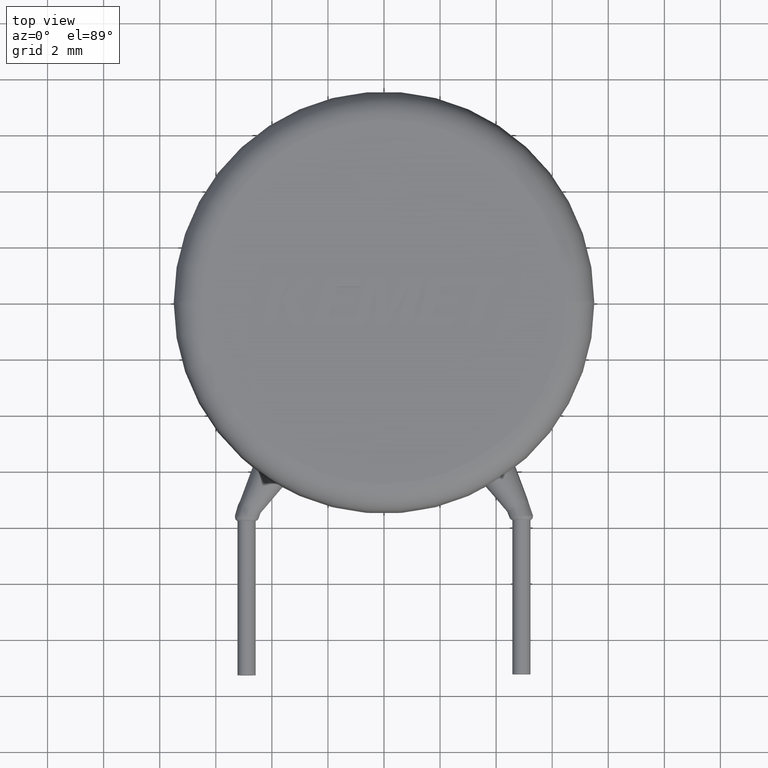
[diagram: clean part render]
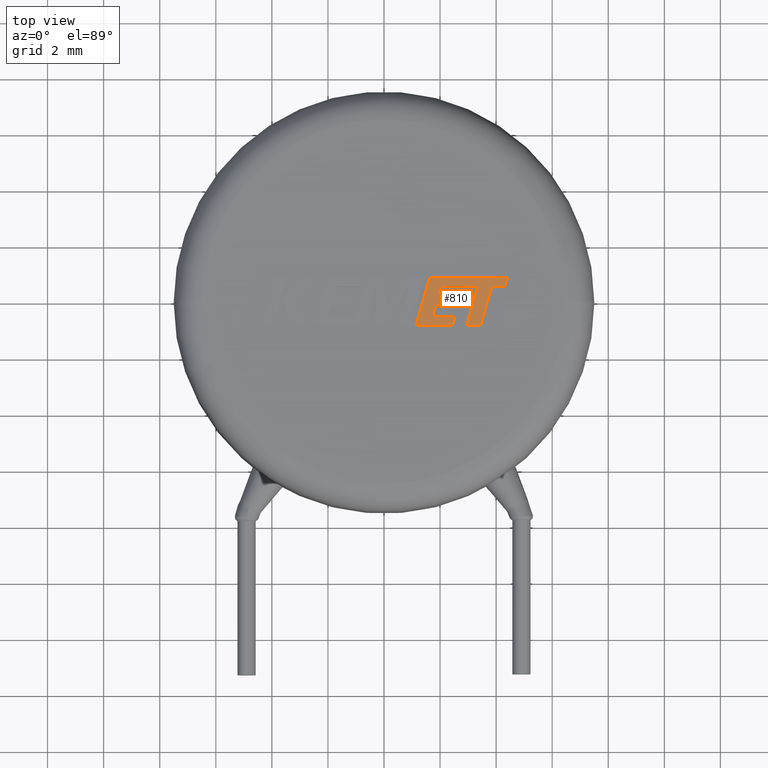
[diagram: same view with one face highlighted and labeled with its STEP entity id]
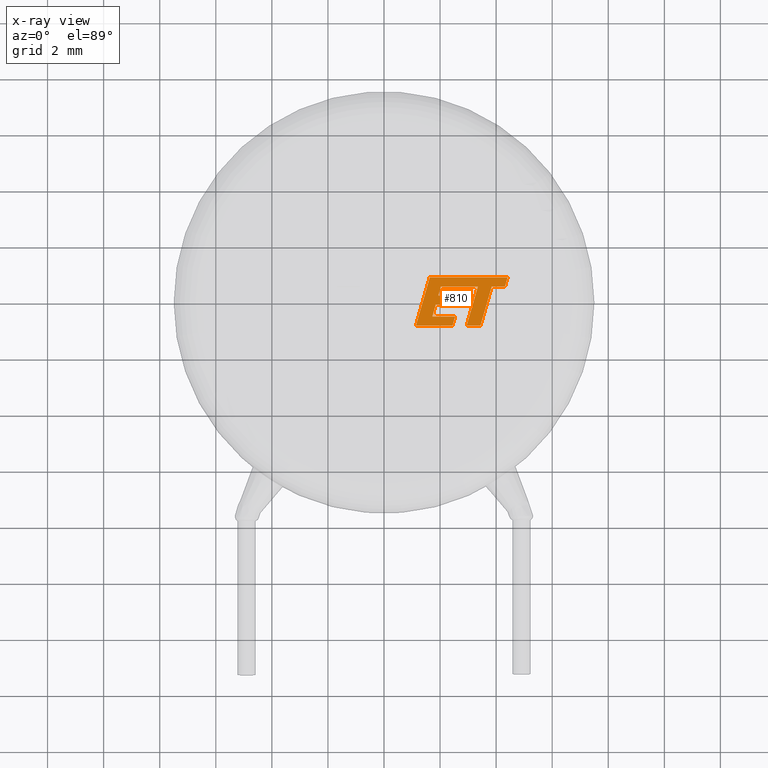
[diagram: x-ray of the same camera — body ghosted, the highlighted face saturated]
A machine part, top view. The second image highlights one B-rep face of the part: STEP entity #810.
The next image is the same camera in x-ray: the body ghosted, the highlighted face saturated — about 0% of this face is hidden behind the body in this view.
In plain terms, the highlighted planar face has unit normal (0, 0, 1).
Its self-contained STEP definition (entity closure, byte-faithful):
#30 = LINE ( 'NONE', #820, #2118 ) ;
#32 = LINE ( 'NONE', #1447, #2534 ) ;
#51 = ORIENTED_EDGE ( 'NONE', *, *, #3257, .T. ) ;
#53 = DIRECTION ( 'NONE',  ( 1.000000000000000000, 0.0000000000000000000, 0.0000000000000000000 ) ) ;
#127 = EDGE_LOOP ( 'NONE', ( #876, #3526, #4137, #2435, #4086, #927, #51, #1449, #3589, #2759, #3793, #1564, #815, #193, #1712, #928, #881 ) ) ;
#193 = ORIENTED_EDGE ( 'NONE', *, *, #3365, .T. ) ;
#215 = VECTOR ( 'NONE', #3650, 1000.000000000000100 ) ;
#300 = LINE ( 'NONE', #1102, #2623 ) ;
#354 = DIRECTION ( 'NONE',  ( 0.9999960426590096500, -0.002813301676023193800, 0.0000000000000000000 ) ) ;
#376 = LINE ( 'NONE', #3717, #2485 ) ;
#416 = DIRECTION ( 'NONE',  ( 0.9999999968487352000, -7.938847109813065900E-005, 0.0000000000000000000 ) ) ;
#457 = DIRECTION ( 'NONE',  ( 1.000000000000000000, 0.0000000000000000000, 0.0000000000000000000 ) ) ;
#556 = DIRECTION ( 'NONE',  ( -1.000000000000000000, 0.0000000000000000000, 0.0000000000000000000 ) ) ;
#565 = VERTEX_POINT ( 'NONE', #1271 ) ;
#576 = VERTEX_POINT ( 'NONE', #3459 ) ;
#586 = CARTESIAN_POINT ( 'NONE',  ( 3.348381559647293200, 0.5265598208040931400, 5.004999999999999900 ) ) ;
#592 = CARTESIAN_POINT ( 'NONE',  ( 1.937553791091198400, 0.2097993090211800500, 5.004999999999999900 ) ) ;
#602 = EDGE_CURVE ( 'NONE', #872, #4114, #2046, .T. ) ;
#671 = CARTESIAN_POINT ( 'NONE',  ( 2.031084921090601900, 0.5312311227469012100, 5.004999999999999900 ) ) ;
#681 = VERTEX_POINT ( 'NONE', #3808 ) ;
#686 = CARTESIAN_POINT ( 'NONE',  ( 2.443977569016539500, -0.8679000000000534100, 5.004999999999999900 ) ) ;
#691 = FACE_OUTER_BOUND ( 'NONE', #127, .T. ) ;
#736 = CARTESIAN_POINT ( 'NONE',  ( 2.823009846060751600, 0.5290031902115094300, 5.004999999999999900 ) ) ;
#771 = VERTEX_POINT ( 'NONE', #2057 ) ;
#791 = LINE ( 'NONE', #1078, #2494 ) ;
#810 = ADVANCED_FACE ( 'NONE', ( #691 ), #2141, .T. ) ;
#815 = ORIENTED_EDGE ( 'NONE', *, *, #2300, .T. ) ;
#820 = CARTESIAN_POINT ( 'NONE',  ( 2.947458794537710000, -0.8679000000000534100, 5.004999999999999900 ) ) ;
#871 = VECTOR ( 'NONE', #2799, 1000.000000000000000 ) ;
#872 = VERTEX_POINT ( 'NONE', #1483 ) ;
#876 = ORIENTED_EDGE ( 'NONE', *, *, #2509, .T. ) ;
#881 = ORIENTED_EDGE ( 'NONE', *, *, #2350, .T. ) ;
#905 = CARTESIAN_POINT ( 'NONE',  ( 1.723808886253191700, -0.5390592596859760100, 5.004999999999999900 ) ) ;
#921 = LINE ( 'NONE', #905, #2154 ) ;
#927 = ORIENTED_EDGE ( 'NONE', *, *, #3858, .T. ) ;
#928 = ORIENTED_EDGE ( 'NONE', *, *, #602, .T. ) ;
#943 = LINE ( 'NONE', #3233, #3447 ) ;
#1031 = VERTEX_POINT ( 'NONE', #736 ) ;
#1078 = CARTESIAN_POINT ( 'NONE',  ( 1.138325030688700700, -0.8679000000000534100, 5.004999999999999900 ) ) ;
#1102 = CARTESIAN_POINT ( 'NONE',  ( 2.823009846060751600, 0.5290031902115094300, 5.004999999999999900 ) ) ;
#1109 = EDGE_CURVE ( 'NONE', #1897, #771, #2224, .T. ) ;
#1179 = CARTESIAN_POINT ( 'NONE',  ( 1.937553791091198400, 0.2097993090211800500, 5.004999999999999900 ) ) ;
#1269 = DIRECTION ( 'NONE',  ( 0.2746918797667246600, 0.9615323037684294600, 0.0000000000000000000 ) ) ;
#1271 = CARTESIAN_POINT ( 'NONE',  ( 2.537288007585364100, -0.5390592596859760100, 5.004999999999999900 ) ) ;
#1393 = EDGE_CURVE ( 'NONE', #3679, #3089, #3599, .T. ) ;
#1447 = CARTESIAN_POINT ( 'NONE',  ( 2.537288007585364100, -0.5390592596859760100, 5.004999999999999900 ) ) ;
#1449 = ORIENTED_EDGE ( 'NONE', *, *, #1393, .T. ) ;
#1483 = CARTESIAN_POINT ( 'NONE',  ( 2.679171579060150700, 0.2097993090211800500, 5.004999999999999900 ) ) ;
#1522 = CARTESIAN_POINT ( 'NONE',  ( 1.723808886253191700, -0.5390592596859760100, 5.004999999999999900 ) ) ;
#1564 = ORIENTED_EDGE ( 'NONE', *, *, #3564, .T. ) ;
#1712 = ORIENTED_EDGE ( 'NONE', *, *, #3401, .T. ) ;
#1746 = EDGE_CURVE ( 'NONE', #771, #3137, #30, .T. ) ;
#1770 = CARTESIAN_POINT ( 'NONE',  ( 3.439737302690416300, -0.8679000000000529600, 5.004999999999999900 ) ) ;
#1781 = LINE ( 'NONE', #2471, #2127 ) ;
#1824 = DIRECTION ( 'NONE',  ( 0.2762033010287896500, 0.9610992334305545900, 0.0000000000000000000 ) ) ;
#1833 = VECTOR ( 'NONE', #1269, 1000.000000000000100 ) ;
#1864 = CARTESIAN_POINT ( 'NONE',  ( 4.313690376552037800, 0.5265222584692270700, 5.004999999999999900 ) ) ;
#1897 = VERTEX_POINT ( 'NONE', #586 ) ;
#1916 = EDGE_CURVE ( 'NONE', #2011, #565, #3484, .T. ) ;
#2011 = VERTEX_POINT ( 'NONE', #2349 ) ;
#2020 = CARTESIAN_POINT ( 'NONE',  ( 1.846408230362533500, -0.1096147544844904700, 5.004999999999999900 ) ) ;
#2046 = LINE ( 'NONE', #2749, #4100 ) ;
#2057 = CARTESIAN_POINT ( 'NONE',  ( 2.947458794537710000, -0.8679000000000534100, 5.004999999999999900 ) ) ;
#2078 = DIRECTION ( 'NONE',  ( 1.000000000000000000, 8.897046291125922000E-017, 0.0000000000000000000 ) ) ;
#2118 = VECTOR ( 'NONE', #2357, 1000.000000000000000 ) ;
#2127 = VECTOR ( 'NONE', #457, 1000.000000000000000 ) ;
#2141 = PLANE ( 'NONE',  #3951 ) ;
#2154 = VECTOR ( 'NONE', #3514, 999.9999999999998900 ) ;
#2162 = VERTEX_POINT ( 'NONE', #2800 ) ;
#2219 = VECTOR ( 'NONE', #2431, 1000.000000000000100 ) ;
#2224 = LINE ( 'NONE', #3312, #3744 ) ;
#2272 = DIRECTION ( 'NONE',  ( 0.2729786930695222700, 0.9620200793798721100, 0.0000000000000000000 ) ) ;
#2300 = EDGE_CURVE ( 'NONE', #4099, #2508, #921, .T. ) ;
#2307 = VECTOR ( 'NONE', #354, 999.9999999999998900 ) ;
#2349 = CARTESIAN_POINT ( 'NONE',  ( 2.443977569016539500, -0.8679000000000534100, 5.004999999999999900 ) ) ;
#2350 = EDGE_CURVE ( 'NONE', #4114, #576, #3323, .T. ) ;
#2357 = DIRECTION ( 'NONE',  ( 1.000000000000000000, 4.719463019915311100E-016, 0.0000000000000000000 ) ) ;
#2362 = DIRECTION ( 'NONE',  ( -0.2763173343569908500, -0.9610664548998924000, 0.0000000000000000000 ) ) ;
#2431 = DIRECTION ( 'NONE',  ( -0.2764273280489765200, -0.9610348236706636200, 0.0000000000000000000 ) ) ;
#2435 = ORIENTED_EDGE ( 'NONE', *, *, #1746, .T. ) ;
#2471 = CARTESIAN_POINT ( 'NONE',  ( 1.846408230362533500, -0.1096147544844904700, 5.004999999999999900 ) ) ;
#2485 = VECTOR ( 'NONE', #416, 1000.000000000000200 ) ;
#2494 = VECTOR ( 'NONE', #2078, 1000.000000000000000 ) ;
#2508 = VERTEX_POINT ( 'NONE', #2020 ) ;
#2509 = EDGE_CURVE ( 'NONE', #576, #1031, #2972, .T. ) ;
#2534 = VECTOR ( 'NONE', #3134, 1000.000000000000000 ) ;
#2535 = CARTESIAN_POINT ( 'NONE',  ( 3.439737302690416300, -0.8679000000000529600, 5.004999999999999900 ) ) ;
#2623 = VECTOR ( 'NONE', #3714, 1000.000000000000200 ) ;
#2641 = VECTOR ( 'NONE', #2272, 1000.000000000000100 ) ;
#2650 = VECTOR ( 'NONE', #3885, 1000.000000000000000 ) ;
#2676 = EDGE_CURVE ( 'NONE', #1031, #1897, #300, .T. ) ;
#2749 = CARTESIAN_POINT ( 'NONE',  ( 2.679171579060150700, 0.2097993090211800500, 5.004999999999999900 ) ) ;
#2759 = ORIENTED_EDGE ( 'NONE', *, *, #2959, .T. ) ;
#2799 = DIRECTION ( 'NONE',  ( 0.2762437428917416400, 0.9610876102172795100, 0.0000000000000000000 ) ) ;
#2800 = CARTESIAN_POINT ( 'NONE',  ( 2.587920927174166800, -0.1096147544844904700, 5.004999999999999900 ) ) ;
#2843 = CARTESIAN_POINT ( 'NONE',  ( 1.138325030688700700, -0.8679000000000534100, 5.004999999999999900 ) ) ;
#2959 = EDGE_CURVE ( 'NONE', #4125, #2011, #791, .T. ) ;
#2961 = CARTESIAN_POINT ( 'NONE',  ( 1.635395697002113500, 0.8602294998000970000, 5.004999999999999900 ) ) ;
#2972 = LINE ( 'NONE', #671, #2307 ) ;
#2976 = CARTESIAN_POINT ( 'NONE',  ( 0.05747670520601499300, 0.1583361317231066200, 5.004999999999999900 ) ) ;
#3042 = CARTESIAN_POINT ( 'NONE',  ( 1.635395697002113500, 0.8602294998000970000, 5.004999999999999900 ) ) ;
#3043 = LINE ( 'NONE', #3042, #2219 ) ;
#3089 = VERTEX_POINT ( 'NONE', #2961 ) ;
#3134 = DIRECTION ( 'NONE',  ( -1.000000000000000000, 0.0000000000000000000, 0.0000000000000000000 ) ) ;
#3137 = VERTEX_POINT ( 'NONE', #1770 ) ;
#3216 = CARTESIAN_POINT ( 'NONE',  ( 4.409592067477127000, 0.8602294998000974400, 5.004999999999999900 ) ) ;
#3233 = CARTESIAN_POINT ( 'NONE',  ( 4.313690376552037800, 0.5265222584692270700, 5.004999999999999900 ) ) ;
#3257 = EDGE_CURVE ( 'NONE', #3263, #3679, #943, .T. ) ;
#3263 = VERTEX_POINT ( 'NONE', #1864 ) ;
#3312 = CARTESIAN_POINT ( 'NONE',  ( 3.348381559647293200, 0.5265598208040931400, 5.004999999999999900 ) ) ;
#3323 = LINE ( 'NONE', #592, #215 ) ;
#3365 = EDGE_CURVE ( 'NONE', #2508, #2162, #1781, .T. ) ;
#3401 = EDGE_CURVE ( 'NONE', #2162, #872, #3751, .T. ) ;
#3447 = VECTOR ( 'NONE', #1824, 1000.000000000000100 ) ;
#3459 = CARTESIAN_POINT ( 'NONE',  ( 2.031084921090601900, 0.5312311227469012100, 5.004999999999999900 ) ) ;
#3484 = LINE ( 'NONE', #686, #2641 ) ;
#3501 = CARTESIAN_POINT ( 'NONE',  ( 4.409592067477127000, 0.8602294998000974400, 5.004999999999999900 ) ) ;
#3514 = DIRECTION ( 'NONE',  ( 0.2745159998572677700, 0.9615825319869141200, 0.0000000000000000000 ) ) ;
#3526 = ORIENTED_EDGE ( 'NONE', *, *, #2676, .T. ) ;
#3553 = CARTESIAN_POINT ( 'NONE',  ( 2.587920927174166800, -0.1096147544844904700, 5.004999999999999900 ) ) ;
#3564 = EDGE_CURVE ( 'NONE', #565, #4099, #32, .T. ) ;
#3589 = ORIENTED_EDGE ( 'NONE', *, *, #3807, .T. ) ;
#3599 = LINE ( 'NONE', #3216, #2650 ) ;
#3650 = DIRECTION ( 'NONE',  ( 0.2793947940814910900, 0.9601763114346036900, 0.0000000000000000000 ) ) ;
#3679 = VERTEX_POINT ( 'NONE', #3501 ) ;
#3714 = DIRECTION ( 'NONE',  ( 0.9999891854650020400, -0.004650693823678618400, 0.0000000000000000000 ) ) ;
#3717 = CARTESIAN_POINT ( 'NONE',  ( 3.840544467526069400, 0.5265598207996693400, 5.004999999999999900 ) ) ;
#3731 = LINE ( 'NONE', #2535, #871 ) ;
#3744 = VECTOR ( 'NONE', #2362, 1000.000000000000100 ) ;
#3751 = LINE ( 'NONE', #3553, #1833 ) ;
#3793 = ORIENTED_EDGE ( 'NONE', *, *, #1916, .T. ) ;
#3807 = EDGE_CURVE ( 'NONE', #3089, #4125, #3043, .T. ) ;
#3808 = CARTESIAN_POINT ( 'NONE',  ( 3.840544467526069400, 0.5265598207996693400, 5.004999999999999900 ) ) ;
#3858 = EDGE_CURVE ( 'NONE', #681, #3263, #376, .T. ) ;
#3885 = DIRECTION ( 'NONE',  ( -1.000000000000000000, -1.557889069115214600E-016, 0.0000000000000000000 ) ) ;
#3913 = DIRECTION ( 'NONE',  ( 0.0000000000000000000, 0.0000000000000000000, 1.000000000000000000 ) ) ;
#3951 = AXIS2_PLACEMENT_3D ( 'NONE', #2976, #3913, #53 ) ;
#4086 = ORIENTED_EDGE ( 'NONE', *, *, #4144, .T. ) ;
#4099 = VERTEX_POINT ( 'NONE', #1522 ) ;
#4100 = VECTOR ( 'NONE', #556, 1000.000000000000000 ) ;
#4114 = VERTEX_POINT ( 'NONE', #1179 ) ;
#4125 = VERTEX_POINT ( 'NONE', #2843 ) ;
#4137 = ORIENTED_EDGE ( 'NONE', *, *, #1109, .T. ) ;
#4144 = EDGE_CURVE ( 'NONE', #3137, #681, #3731, .T. ) ;